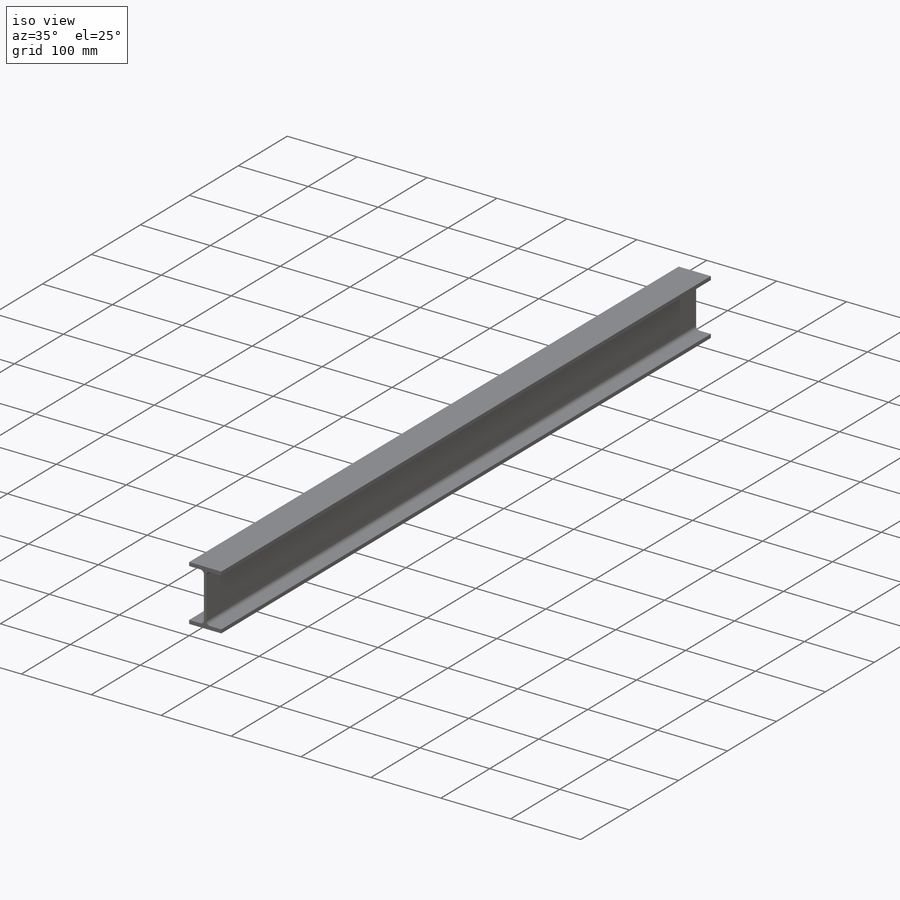
[diagram: iso view]
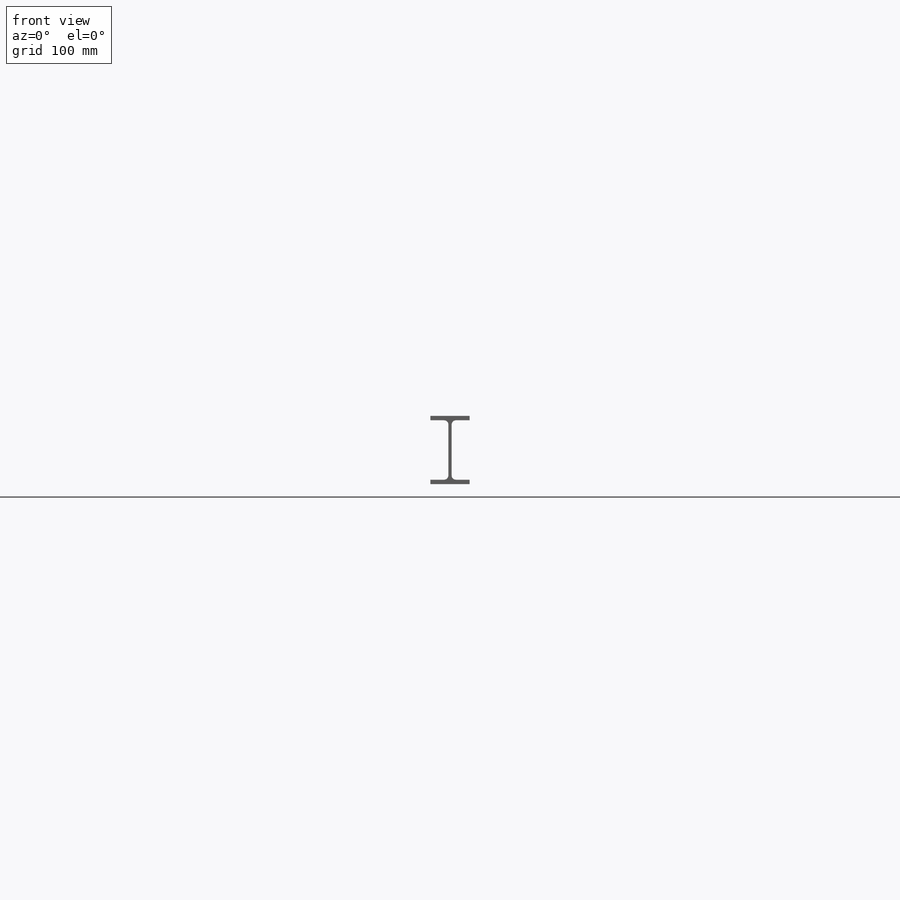
[diagram: front view]
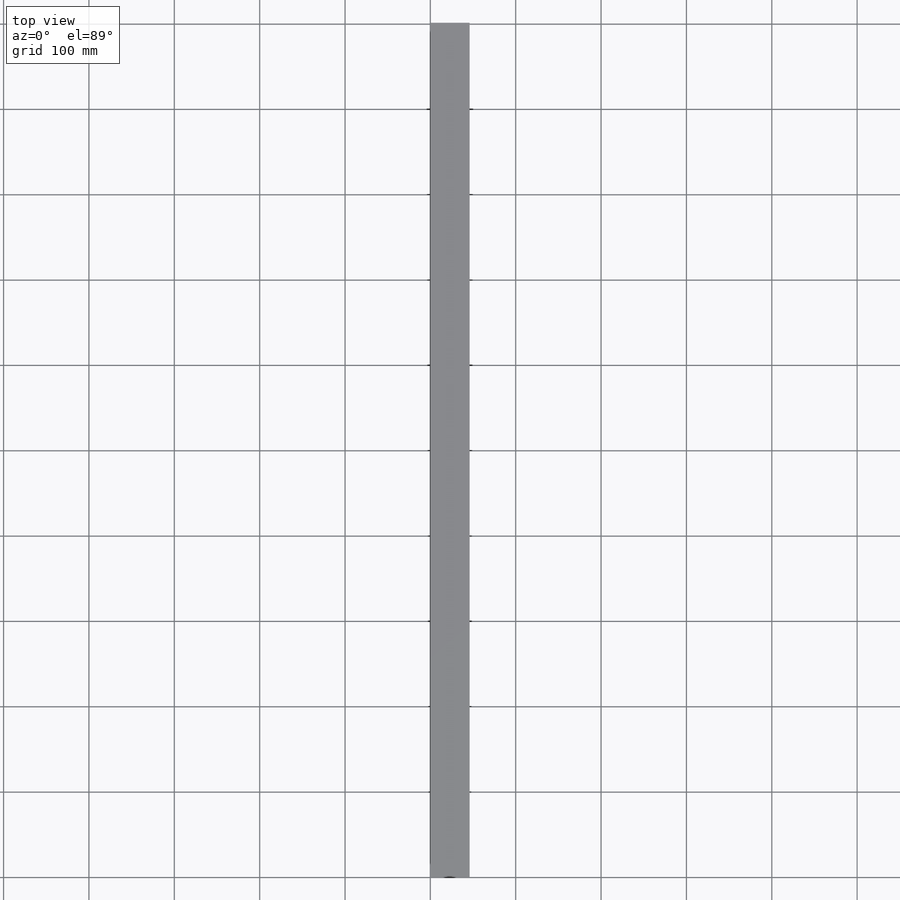
[diagram: top view]
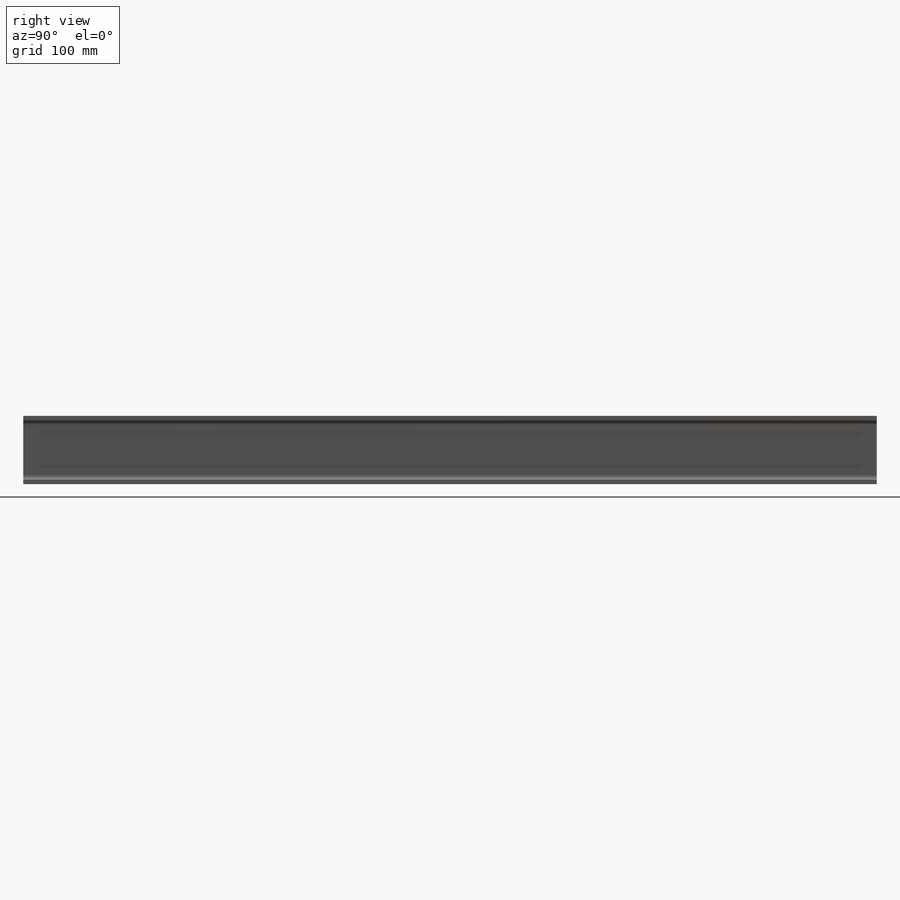
[diagram: right view]
SOLIDWORKS PART (.sldprt)
format: sldprt  version: not decoded by parser v0  size: 236,544 bytes
history: native  units: mm
features: plane x7, sketch x4, extrude x3, material x1 (+12 scaffold rows collapsed)
feature tree (27):
  scaffold x12  (default folders/planes/origin — collapsed)
  material  "Material <nicht festgelegt>"
  plane  "Ebene vorne"
  plane  "Ebene oben"
  plane  "Ebene rechts"
  sketch  "Skizze1"  dims[c1.CurrentVersion=0.0mm c1.EditFunction=0.0mm c1.Type=0.0mm c1.SubType=0.0mm c1.Application=0.0mm c2.CurrentVersion=0.0mm c2.EditFunction=0.0mm c2.Type=0.0mm c2.SubType=0.0mm c2.STANDARD=0.0mm c2.TYPE=0.0mm c2.SIZE=0.0mm]
  sketch  "CimSteelSettings6.1"  dims[c1.STANDARD=0.0mm c1.TYPE=0.0mm c1.SIZE=0.0mm c1.D5=6.35mm c1.D4=5.0mm c1.D1=46.0mm c1.D2=6.35mm c1.D3=44.45mm c2.D4=12.7mm c2.D2=80.0mm c2.D3=3.8mm c2.D5=5.2mm c2.D6=6.35mm]
  extrude  "Linear austragen1"  Depth=1000mm
  plane  "Ebene1"  Offset=500mm
  plane  "Ebene2"  Offset=700mm
  plane  "Ebene3"  Offset=800mm
  plane  "Ebene Max Biegemoment"  Offset=575mm
  sketch  "Skizze2"  dims[D1=5.0mm]
  extrude  "Trennlinie2"  [1 undecoded]
  sketch  "Skizze3"  dims[D1=45.0mm]
  extrude  "Trennlinie3"  [1 undecoded]
decode coverage: 5 of 7 modeling features carry decoded parameters
note: 2 parameter values undecoded
note: suppression state not decoded; provenance and decode notes live in map.json
